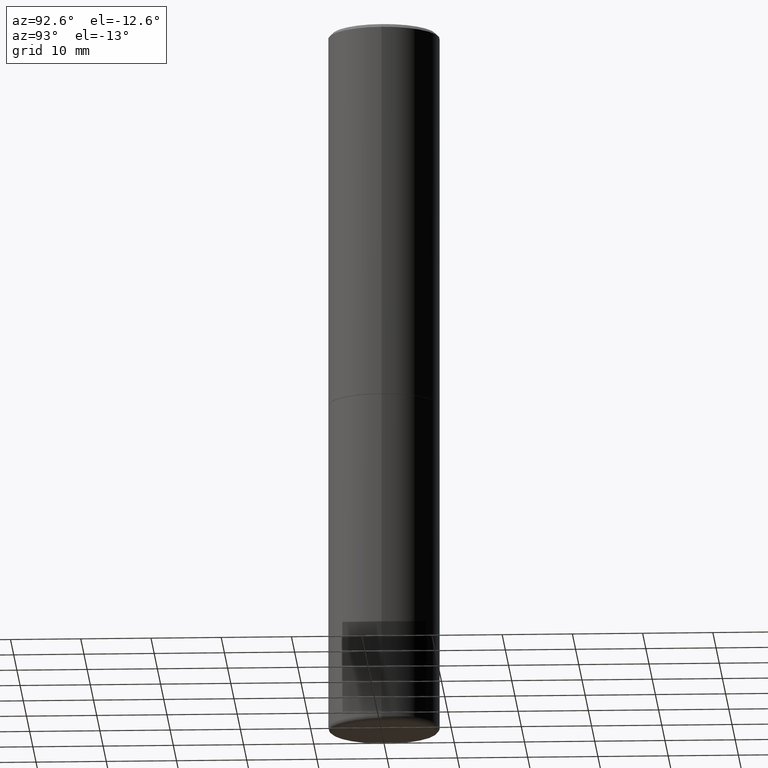
[diagram: clean part render]
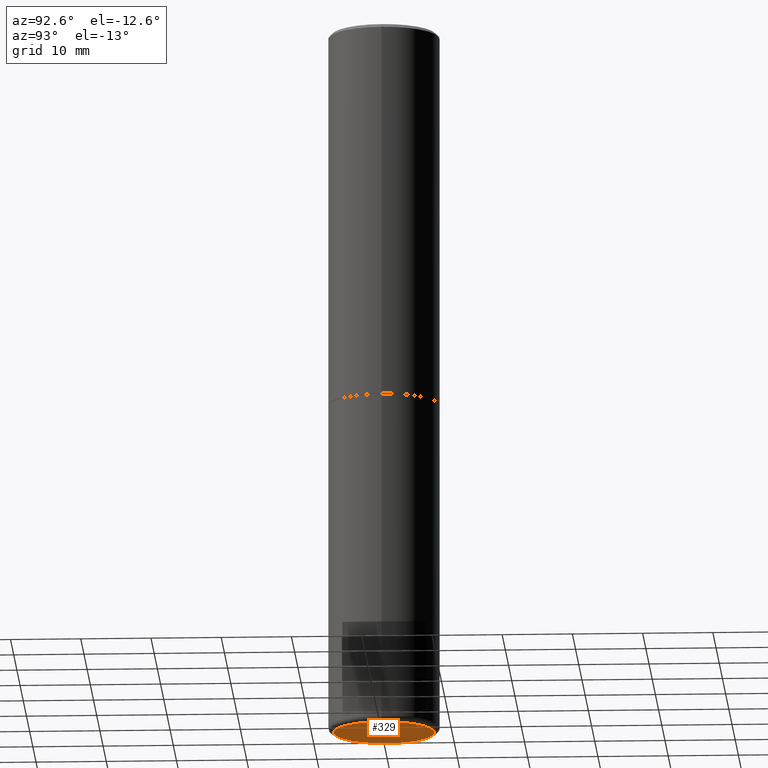
[diagram: same view with one face highlighted and labeled with its STEP entity id]
A machine part, auxiliary view. The second image highlights one B-rep face of the part: STEP entity #329.
In plain terms, the highlighted planar face has unit normal (0, -0, -1).
Its self-contained STEP definition (entity closure, byte-faithful):
#31 = CARTESIAN_POINT ( 'NONE',  ( -0.2825000000000000289, -1.179968849640363848E-14, -4.000000000000000000 ) ) ;
#34 = AXIS2_PLACEMENT_3D ( 'NONE', #243, #78, #311 ) ;
#41 = VERTEX_POINT ( 'NONE', #331 ) ;
#78 = DIRECTION ( 'NONE',  ( 2.438088387897960049E-29, -3.491481338843145188E-15, -1.000000000000000000 ) ) ;
#81 = CARTESIAN_POINT ( 'NONE',  ( 9.781875224740546387E-29, -1.396592535537258233E-14, -4.000000000000000000 ) ) ;
#101 = CARTESIAN_POINT ( 'NONE',  ( 9.781875224740546387E-29, -1.396592535537258233E-14, -4.000000000000000000 ) ) ;
#134 = CIRCLE ( 'NONE', #360, 0.2825000000000000289 ) ;
#150 = VERTEX_POINT ( 'NONE', #31 ) ;
#167 = PLANE ( 'NONE',  #34 ) ;
#195 = EDGE_CURVE ( 'NONE', #41, #150, #134, .T. ) ;
#224 = DIRECTION ( 'NONE',  ( -2.445468806185136597E-29, 3.491481338843145583E-15, 1.000000000000000000 ) ) ;
#240 = FACE_OUTER_BOUND ( 'NONE', #287, .T. ) ;
#242 = AXIS2_PLACEMENT_3D ( 'NONE', #81, #276, #399 ) ;
#243 = CARTESIAN_POINT ( 'NONE',  ( 9.781875224740546387E-29, -1.396592535537258233E-14, -4.000000000000000000 ) ) ;
#276 = DIRECTION ( 'NONE',  ( -2.445468806185136597E-29, 3.491481338843145583E-15, 1.000000000000000000 ) ) ;
#287 = EDGE_LOOP ( 'NONE', ( #337, #320 ) ) ;
#298 = DIRECTION ( 'NONE',  ( 1.000000000000000000, -6.982962677686269077E-15, 0.000000000000000000 ) ) ;
#311 = DIRECTION ( 'NONE',  ( -1.000000000000000000, 6.982962677686265922E-15, -4.876176775795935793E-29 ) ) ;
#320 = ORIENTED_EDGE ( 'NONE', *, *, #366, .F. ) ;
#329 = ADVANCED_FACE ( 'NONE', ( #240 ), #167, .T. ) ;
#331 = CARTESIAN_POINT ( 'NONE',  ( 0.2825000000000000289, -1.593861231181895394E-14, -4.000000000000000000 ) ) ;
#337 = ORIENTED_EDGE ( 'NONE', *, *, #195, .F. ) ;
#360 = AXIS2_PLACEMENT_3D ( 'NONE', #101, #224, #298 ) ;
#366 = EDGE_CURVE ( 'NONE', #150, #41, #383, .T. ) ;
#383 = CIRCLE ( 'NONE', #242, 0.2825000000000000289 ) ;
#399 = DIRECTION ( 'NONE',  ( 1.000000000000000000, -6.982962677686269077E-15, 0.000000000000000000 ) ) ;